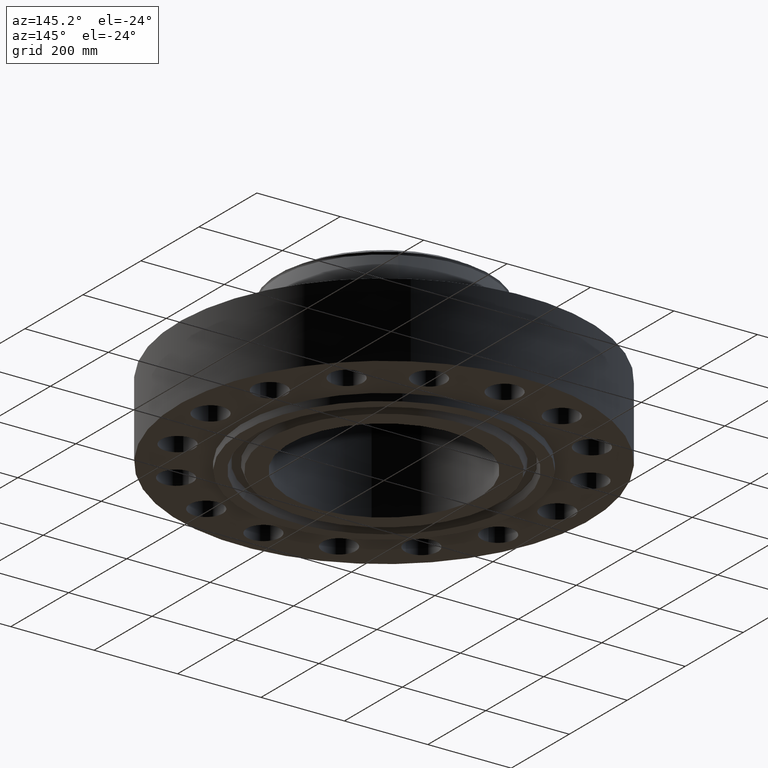
[diagram: clean part render]
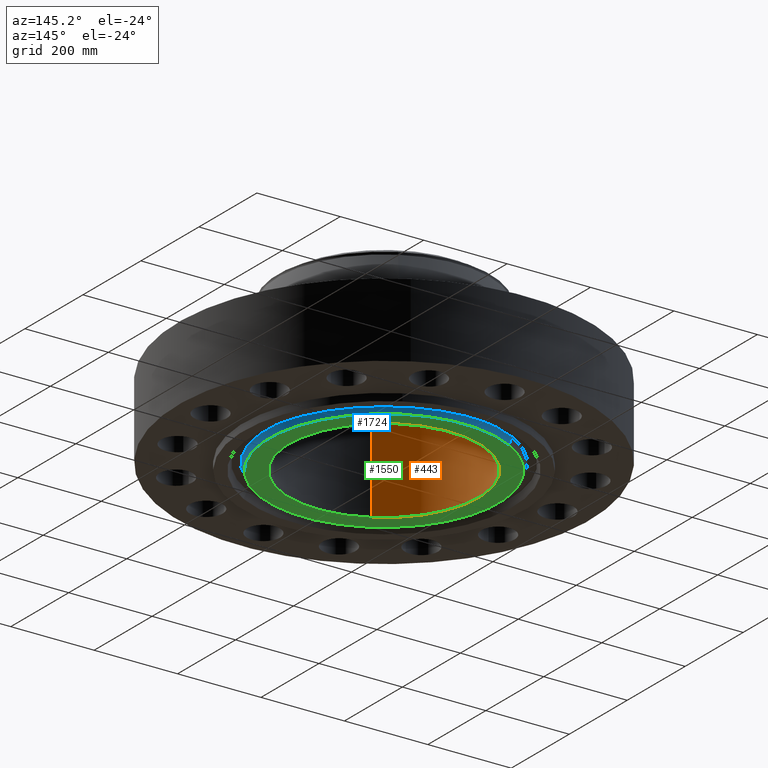
[diagram: same view with three faces highlighted in distinct colors, each labeled with its STEP entity id]
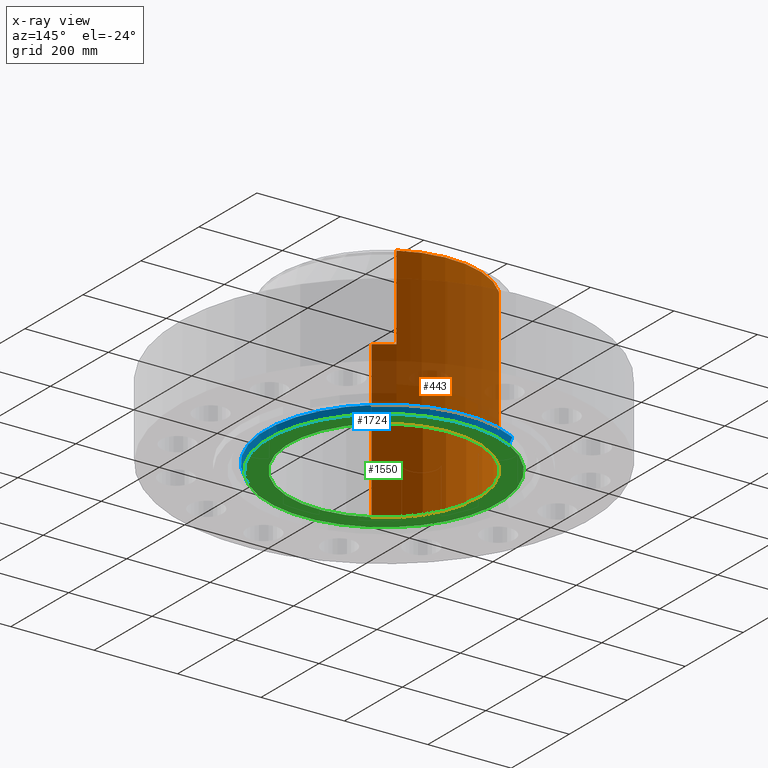
[diagram: x-ray of the same camera — body ghosted, the three highlighted faces saturated]
A machine part, auxiliary view with three faces highlighted in distinct colors.
The next image is the same camera in x-ray (body ghosted, the three faces saturated) — at least one of them is partly hidden behind the body in this view.
Their STEP definitions:

[orange] entity #443 — the highlighted cylindrical surface (partial cylindrical patch) has radius 227.813 mm, axis along (0, 0, -1).
#365=AXIS2_PLACEMENT_3D('Circle Axis2P3D',#363,#364,$) ;
#416=AXIS2_PLACEMENT_3D('Cylinder Axis2P3D',#413,#414,#415) ;
#427=AXIS2_PLACEMENT_3D('Circle Axis2P3D',#425,#426,$) ;
#363=CARTESIAN_POINT('Axis2P3D Location',(0.,0.,14.0000000001)) ;
#367=CARTESIAN_POINT('Vertex',(-4.29996765576,-7.87103799763,14.0000000001)) ;
#369=CARTESIAN_POINT('Vertex',(4.29996765576,7.87103799763,14.0000000001)) ;
#413=CARTESIAN_POINT('Axis2P3D Location',(0.,0.,6.65600000003)) ;
#418=CARTESIAN_POINT('Line Origine',(-4.29996765576,-7.87103799763,6.65600000003)) ;
#422=CARTESIAN_POINT('Vertex',(-4.29996765576,-7.87103799763,-0.688000000003)) ;
#425=CARTESIAN_POINT('Axis2P3D Location',(0.,0.,-0.688000000003)) ;
#429=CARTESIAN_POINT('Vertex',(4.29996765576,7.87103799763,-0.688000000003)) ;
#432=CARTESIAN_POINT('Line Origine',(4.29996765576,7.87103799763,6.65600000003)) ;
#364=DIRECTION('Axis2P3D Direction',(0.,0.,-0.0393700787402)) ;
#414=DIRECTION('Axis2P3D Direction',(0.,0.,-0.0393700787402)) ;
#415=DIRECTION('Axis2P3D XDirection',(0.0188750212049,0.0345504945626,0.)) ;
#419=DIRECTION('Vector Direction',(0.,0.,-0.0393700787402)) ;
#426=DIRECTION('Axis2P3D Direction',(0.,0.,-0.0393700787402)) ;
#433=DIRECTION('Vector Direction',(0.,0.,-0.0393700787402)) ;
#420=VECTOR('Line Direction',#419,0.0393700787402) ;
#434=VECTOR('Line Direction',#433,0.0393700787402) ;
#438=ORIENTED_EDGE('',*,*,#371,.F.) ;
#439=ORIENTED_EDGE('',*,*,#424,.T.) ;
#440=ORIENTED_EDGE('',*,*,#431,.T.) ;
#441=ORIENTED_EDGE('',*,*,#436,.F.) ;
#443=ADVANCED_FACE('PartBody',(#442),#417,.F.) ;
#366=CIRCLE('generated circle',#365,8.96900000004) ;
#428=CIRCLE('generated circle',#427,8.96900000004) ;
#417=CYLINDRICAL_SURFACE('generated cylinder',#416,8.96900000004) ;
#371=EDGE_CURVE('',#368,#370,#366,.T.) ;
#424=EDGE_CURVE('',#368,#423,#421,.T.) ;
#431=EDGE_CURVE('',#423,#430,#428,.T.) ;
#436=EDGE_CURVE('',#370,#430,#435,.T.) ;
#437=EDGE_LOOP('',(#438,#439,#440,#441)) ;
#442=FACE_OUTER_BOUND('',#437,.T.) ;
#421=LINE('Line',#418,#420) ;
#435=LINE('Line',#432,#434) ;
#368=VERTEX_POINT('',#367) ;
#370=VERTEX_POINT('',#369) ;
#423=VERTEX_POINT('',#422) ;
#430=VERTEX_POINT('',#429) ;

[blue] entity #1724 — the highlighted conical surface has half-angle 23 deg.
#1530=AXIS2_PLACEMENT_3D('Circle Axis2P3D',#1528,#1529,$) ;
#1674=AXIS2_PLACEMENT_3D('Circle Axis2P3D',#1672,#1673,$) ;
#1706=AXIS2_PLACEMENT_3D('Cone Axis2P3D',#1703,#1704,#1705) ;
#1528=CARTESIAN_POINT('Axis2P3D Location',(1.1189649382E-015,1.1189649382E-015,-0.688000000003)) ;
#1532=CARTESIAN_POINT('Vertex',(-5.19865082788,9.5160665099,-0.688000000003)) ;
#1534=CARTESIAN_POINT('Vertex',(5.19865082788,-9.5160665099,-0.688000000003)) ;
#1669=CARTESIAN_POINT('Vertex',(5.32700668905,-9.75102033779,-0.0572712739222)) ;
#1672=CARTESIAN_POINT('Axis2P3D Location',(0.,0.,-0.0572712739222)) ;
#1676=CARTESIAN_POINT('Vertex',(-5.32700668905,9.75102033779,-0.0572712739222)) ;
#1703=CARTESIAN_POINT('Axis2P3D Location',(0.,0.,-0.748000000003)) ;
#1708=CARTESIAN_POINT('Line Origine',(-5.26282875846,9.63354342384,-0.372635636962)) ;
#1713=CARTESIAN_POINT('Line Origine',(5.26282875846,-9.63354342384,-0.372635636962)) ;
#1529=DIRECTION('Axis2P3D Direction',(0.,0.,-0.0393700787402)) ;
#1673=DIRECTION('Axis2P3D Direction',(0.,0.,0.0393700787402)) ;
#1704=DIRECTION('Axis2P3D Direction',(0.,0.,0.0393700787402)) ;
#1705=DIRECTION('Axis2P3D XDirection',(-0.0188750212049,0.0345504945626,0.)) ;
#1709=DIRECTION('Vector Direction',(-0.00737505833565,0.0134999537303,0.0362403485611)) ;
#1714=DIRECTION('Vector Direction',(0.00737505833565,-0.0134999537303,0.0362403485611)) ;
#1710=VECTOR('Line Direction',#1709,0.0393700787402) ;
#1715=VECTOR('Line Direction',#1714,0.0393700787402) ;
#1719=ORIENTED_EDGE('',*,*,#1712,.F.) ;
#1720=ORIENTED_EDGE('',*,*,#1678,.F.) ;
#1721=ORIENTED_EDGE('',*,*,#1717,.T.) ;
#1722=ORIENTED_EDGE('',*,*,#1536,.F.) ;
#1724=ADVANCED_FACE('PartBody',(#1723),#1707,.T.) ;
#1531=CIRCLE('generated circle',#1530,10.8435) ;
#1675=CIRCLE('generated circle',#1674,11.1112284601) ;
#1707=CONICAL_SURFACE('Cone',#1706,10.8180315111,0.401425727959) ;
#1536=EDGE_CURVE('',#1533,#1535,#1531,.T.) ;
#1678=EDGE_CURVE('',#1670,#1677,#1675,.T.) ;
#1712=EDGE_CURVE('',#1677,#1533,#1711,.F.) ;
#1717=EDGE_CURVE('',#1670,#1535,#1716,.F.) ;
#1718=EDGE_LOOP('',(#1719,#1720,#1721,#1722)) ;
#1723=FACE_OUTER_BOUND('',#1718,.T.) ;
#1711=LINE('Line',#1708,#1710) ;
#1716=LINE('Line',#1713,#1715) ;
#1533=VERTEX_POINT('',#1532) ;
#1535=VERTEX_POINT('',#1534) ;
#1670=VERTEX_POINT('',#1669) ;
#1677=VERTEX_POINT('',#1676) ;

[green] entity #1550 — the highlighted planar face has unit normal (0, 0, -1).
#427=AXIS2_PLACEMENT_3D('Circle Axis2P3D',#425,#426,$) ;
#446=AXIS2_PLACEMENT_3D('Circle Axis2P3D',#444,#445,$) ;
#1503=AXIS2_PLACEMENT_3D('Plane Axis2P3D',#1500,#1501,#1502) ;
#1530=AXIS2_PLACEMENT_3D('Circle Axis2P3D',#1528,#1529,$) ;
#1539=AXIS2_PLACEMENT_3D('Circle Axis2P3D',#1537,#1538,$) ;
#422=CARTESIAN_POINT('Vertex',(-4.29996765576,-7.87103799763,-0.688000000003)) ;
#425=CARTESIAN_POINT('Axis2P3D Location',(0.,0.,-0.688000000003)) ;
#429=CARTESIAN_POINT('Vertex',(4.29996765576,7.87103799763,-0.688000000003)) ;
#444=CARTESIAN_POINT('Axis2P3D Location',(0.,0.,-0.688000000003)) ;
#1500=CARTESIAN_POINT('Axis2P3D Location',(0.,8.96900000004,-0.688000000003)) ;
#1528=CARTESIAN_POINT('Axis2P3D Location',(1.1189649382E-015,1.1189649382E-015,-0.688000000003)) ;
#1532=CARTESIAN_POINT('Vertex',(-5.19865082788,9.5160665099,-0.688000000003)) ;
#1534=CARTESIAN_POINT('Vertex',(5.19865082788,-9.5160665099,-0.688000000003)) ;
#1537=CARTESIAN_POINT('Axis2P3D Location',(3.35689481461E-015,-1.1189649382E-015,-0.688000000003)) ;
#426=DIRECTION('Axis2P3D Direction',(0.,0.,-0.0393700787402)) ;
#445=DIRECTION('Axis2P3D Direction',(0.,0.,-0.0393700787402)) ;
#1501=DIRECTION('Axis2P3D Direction',(0.,0.,-0.0393700787402)) ;
#1502=DIRECTION('Axis2P3D XDirection',(0.0393700787402,0.,0.)) ;
#1529=DIRECTION('Axis2P3D Direction',(0.,0.,-0.0393700787402)) ;
#1538=DIRECTION('Axis2P3D Direction',(0.,0.,-0.0393700787402)) ;
#1543=ORIENTED_EDGE('',*,*,#1536,.T.) ;
#1544=ORIENTED_EDGE('',*,*,#1541,.T.) ;
#1547=ORIENTED_EDGE('',*,*,#448,.F.) ;
#1548=ORIENTED_EDGE('',*,*,#431,.F.) ;
#1549=FACE_BOUND('',#1546,.T.) ;
#1550=ADVANCED_FACE('PartBody',(#1545,#1549),#1504,.T.) ;
#428=CIRCLE('generated circle',#427,8.96900000004) ;
#447=CIRCLE('generated circle',#446,8.96900000004) ;
#1531=CIRCLE('generated circle',#1530,10.8435) ;
#1540=CIRCLE('generated circle',#1539,10.8435) ;
#431=EDGE_CURVE('',#423,#430,#428,.T.) ;
#448=EDGE_CURVE('',#430,#423,#447,.T.) ;
#1536=EDGE_CURVE('',#1533,#1535,#1531,.T.) ;
#1541=EDGE_CURVE('',#1535,#1533,#1540,.T.) ;
#1542=EDGE_LOOP('',(#1543,#1544)) ;
#1546=EDGE_LOOP('',(#1547,#1548)) ;
#1545=FACE_OUTER_BOUND('',#1542,.T.) ;
#1504=PLANE('',#1503) ;
#423=VERTEX_POINT('',#422) ;
#430=VERTEX_POINT('',#429) ;
#1533=VERTEX_POINT('',#1532) ;
#1535=VERTEX_POINT('',#1534) ;